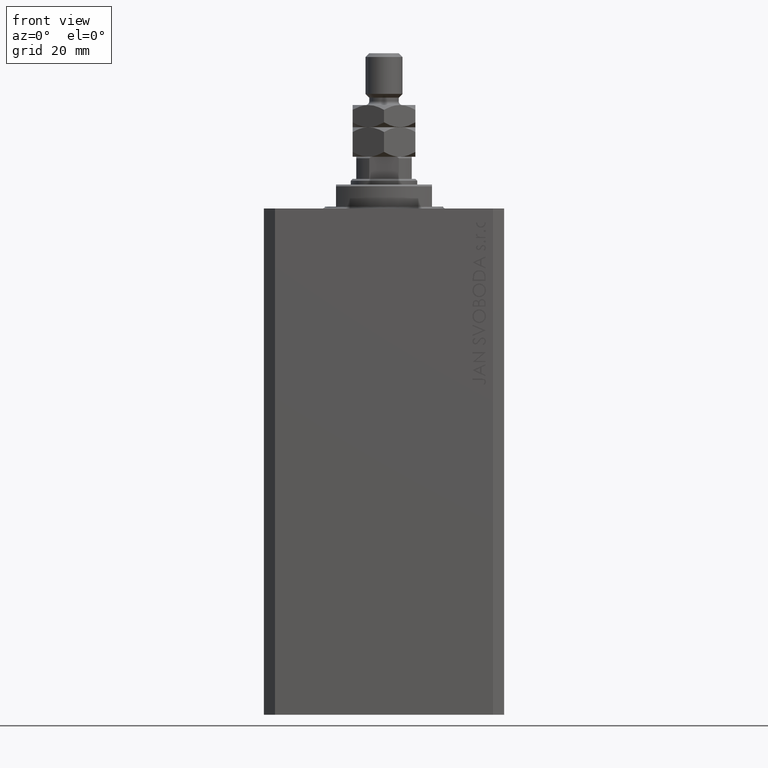
[diagram: clean part render]
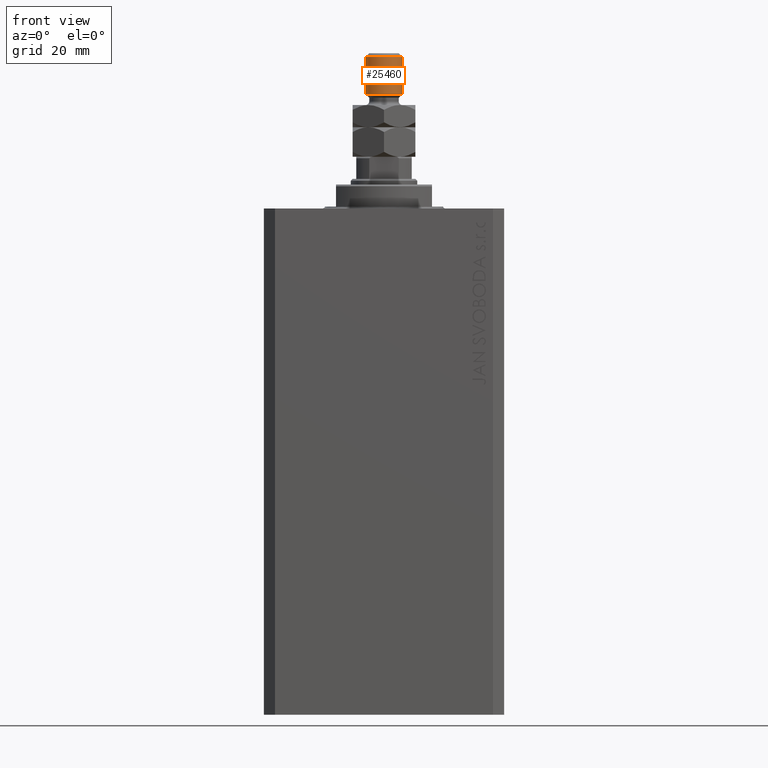
[diagram: same view with one face highlighted and labeled with its STEP entity id]
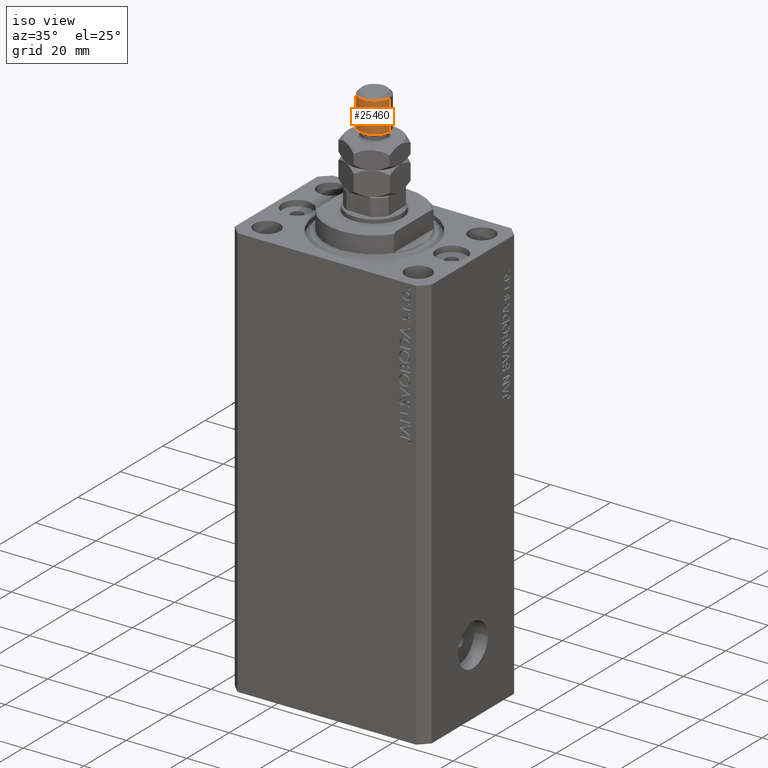
[diagram: same view with one face highlighted and labeled with its STEP entity id]
A machine part, front view. The second image highlights one B-rep face of the part: STEP entity #25460.
A second angle (iso view) of the same face is appended — the face is thin or edge-on in the first view.
In plain terms, the highlighted cylindrical surface (edge-blend (fillet) strip) has radius 5 mm, axis along (-0, -0, -1).
Its self-contained STEP definition (entity closure, byte-faithful):
#880 = AXIS2_PLACEMENT_3D ( 'NONE', #48197, #33894, #32923 ) ;
#1487 = LINE ( 'NONE', #9860, #20732 ) ;
#3151 = CARTESIAN_POINT ( 'NONE',  ( 5.000000000000000000, 6.123233995736766282E-16, 28.00000000000000000 ) ) ;
#3597 = CARTESIAN_POINT ( 'NONE',  ( 5.000000000000000000, 6.123233995736766282E-16, 26.99999999999998934 ) ) ;
#3615 = CARTESIAN_POINT ( 'NONE',  ( 0.000000000000000000, 0.000000000000000000, 28.00000000000000000 ) ) ;
#4026 = VERTEX_POINT ( 'NONE', #28170 ) ;
#5688 = DIRECTION ( 'NONE',  ( -0.000000000000000000, -0.000000000000000000, -1.000000000000000000 ) ) ;
#7313 = FACE_OUTER_BOUND ( 'NONE', #34891, .T. ) ;
#8088 = AXIS2_PLACEMENT_3D ( 'NONE', #14097, #25926, #36313 ) ;
#8520 = EDGE_CURVE ( 'NONE', #36952, #4026, #41957, .T. ) ;
#9860 = CARTESIAN_POINT ( 'NONE',  ( -5.000000000000000000, 0.000000000000000000, 28.00000000000000000 ) ) ;
#10267 = EDGE_CURVE ( 'NONE', #4026, #36586, #1487, .T. ) ;
#10657 = EDGE_CURVE ( 'NONE', #36952, #44038, #29294, .T. ) ;
#14097 = CARTESIAN_POINT ( 'NONE',  ( 0.000000000000000000, 0.000000000000000000, 26.99999999999998934 ) ) ;
#17351 = ORIENTED_EDGE ( 'NONE', *, *, #8520, .T. ) ;
#17474 = CARTESIAN_POINT ( 'NONE',  ( -5.000000000000000000, 0.000000000000000000, 17.00000000000000355 ) ) ;
#17656 = EDGE_CURVE ( 'NONE', #36586, #44038, #22152, .T. ) ;
#18645 = DIRECTION ( 'NONE',  ( -0.000000000000000000, -0.000000000000000000, -1.000000000000000000 ) ) ;
#20732 = VECTOR ( 'NONE', #5688, 1000.000000000000000 ) ;
#21555 = VECTOR ( 'NONE', #25087, 1000.000000000000000 ) ;
#22152 = CIRCLE ( 'NONE', #880, 5.000000000000000000 ) ;
#22354 = CYLINDRICAL_SURFACE ( 'NONE', #22406, 5.000000000000000000 ) ;
#22406 = AXIS2_PLACEMENT_3D ( 'NONE', #3615, #18645, #41332 ) ;
#25087 = DIRECTION ( 'NONE',  ( -0.000000000000000000, -0.000000000000000000, -1.000000000000000000 ) ) ;
#25460 = ADVANCED_FACE ( 'NONE', ( #7313 ), #22354, .T. ) ;
#25926 = DIRECTION ( 'NONE',  ( 0.000000000000000000, 0.000000000000000000, -1.000000000000000000 ) ) ;
#26880 = ORIENTED_EDGE ( 'NONE', *, *, #17656, .T. ) ;
#28170 = CARTESIAN_POINT ( 'NONE',  ( -5.000000000000000000, 0.000000000000000000, 26.99999999999998934 ) ) ;
#29294 = LINE ( 'NONE', #3151, #21555 ) ;
#32923 = DIRECTION ( 'NONE',  ( 1.000000000000000000, 0.000000000000000000, 0.000000000000000000 ) ) ;
#33894 = DIRECTION ( 'NONE',  ( -0.000000000000000000, -0.000000000000000000, 1.000000000000000000 ) ) ;
#34891 = EDGE_LOOP ( 'NONE', ( #37727, #17351, #36818, #26880 ) ) ;
#35968 = CARTESIAN_POINT ( 'NONE',  ( 5.000000000000000000, 6.123233995736766282E-16, 17.00000000000000355 ) ) ;
#36313 = DIRECTION ( 'NONE',  ( 1.000000000000000000, 0.000000000000000000, 0.000000000000000000 ) ) ;
#36586 = VERTEX_POINT ( 'NONE', #17474 ) ;
#36818 = ORIENTED_EDGE ( 'NONE', *, *, #10267, .T. ) ;
#36952 = VERTEX_POINT ( 'NONE', #3597 ) ;
#37727 = ORIENTED_EDGE ( 'NONE', *, *, #10657, .F. ) ;
#41332 = DIRECTION ( 'NONE',  ( -1.000000000000000000, 0.000000000000000000, 0.000000000000000000 ) ) ;
#41957 = CIRCLE ( 'NONE', #8088, 5.000000000000000000 ) ;
#44038 = VERTEX_POINT ( 'NONE', #35968 ) ;
#48197 = CARTESIAN_POINT ( 'NONE',  ( 0.000000000000000000, 0.000000000000000000, 17.00000000000000355 ) ) ;